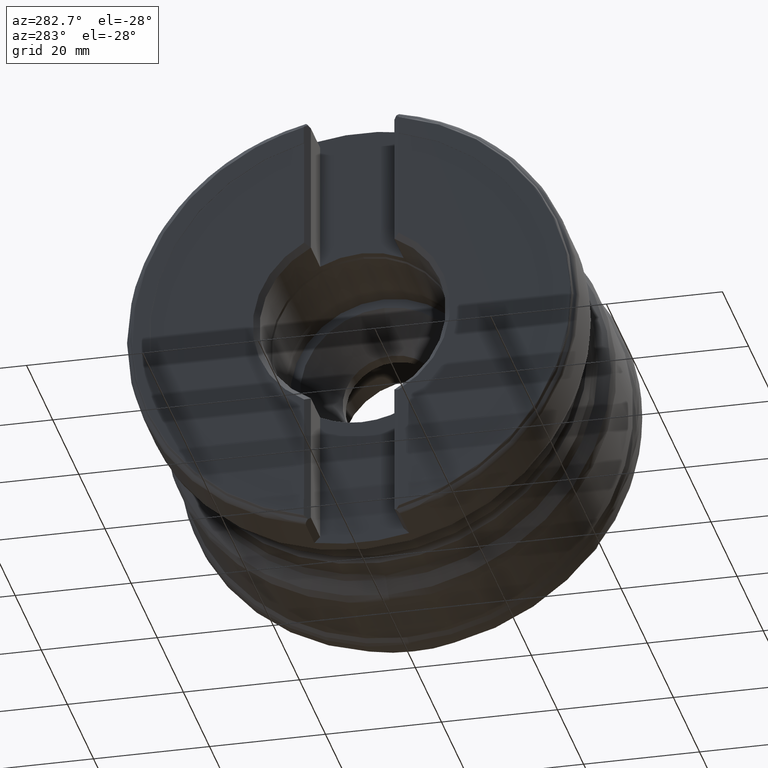
[diagram: clean part render]
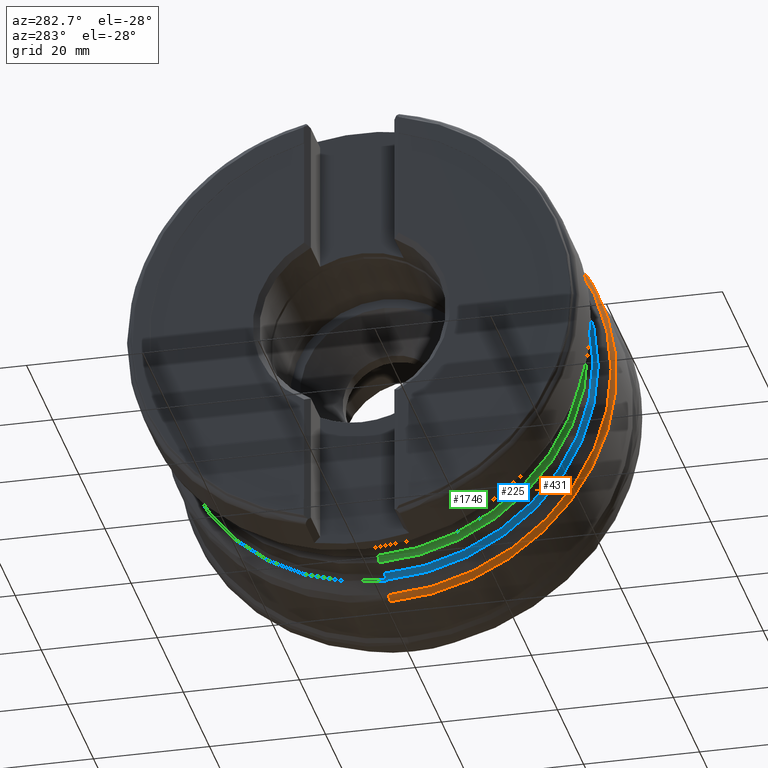
[diagram: same view with three faces highlighted in distinct colors, each labeled with its STEP entity id]
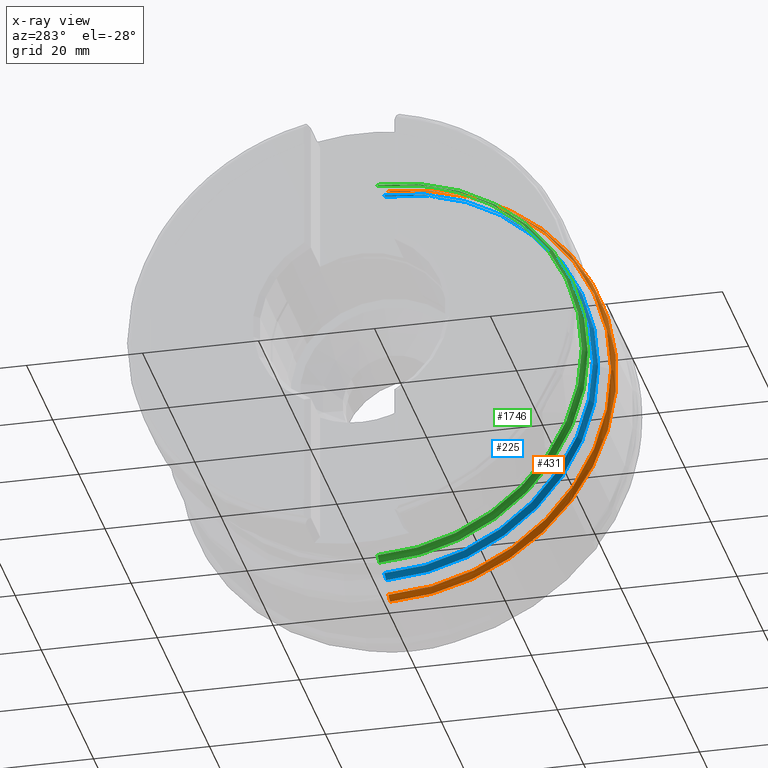
[diagram: x-ray of the same camera — body ghosted, the three highlighted faces saturated]
A machine part, auxiliary view with three faces highlighted in distinct colors.
The next image is the same camera in x-ray (body ghosted, the three faces saturated) — at least one of them is partly hidden behind the body in this view.
Their STEP definitions:

[orange] entity #431 — the highlighted face is a freeform B-spline surface patch.
#61 = CIRCLE ( 'NONE', #583, 39.00000000037699300 ) ;
#115 = ORIENTED_EDGE ( 'NONE', *, *, #116, .T. ) ;
#116 = EDGE_CURVE ( 'NONE', #322, #1352, #61, .T. ) ;
#271 = CARTESIAN_POINT ( 'NONE',  ( -18.98033316699999800, -77.98001666100002200, -38.99000833100000600 ) ) ;
#281 = VERTEX_POINT ( 'NONE', #1331 ) ;
#308 = ORIENTED_EDGE ( 'NONE', *, *, #1529, .F. ) ;
#322 = VERTEX_POINT ( 'NONE', #1762 ) ;
#337 = CARTESIAN_POINT ( 'NONE',  ( -20.59421356200008500, 0.0000000000000000000, 0.0000000000000000000 ) ) ;
#346 = DIRECTION ( 'NONE',  ( 1.000000000000000000, 0.0000000000000000000, 0.0000000000000000000 ) ) ;
#427 = DIRECTION ( 'NONE',  ( 2.167602018260648100E-015, 0.0000000000000000000, -1.000000000000000000 ) ) ;
#431 = ADVANCED_FACE ( 'NONE', ( #2751 ), #2406, .T. ) ;
#583 = AXIS2_PLACEMENT_3D ( 'NONE', #1264, #1311, #1271 ) ;
#934 = CIRCLE ( 'NONE', #1683, 38.41421356199999300 ) ;
#1010 = VERTEX_POINT ( 'NONE', #1489 ) ;
#1264 = CARTESIAN_POINT ( 'NONE',  ( -19.18000000058822600, 0.0000000000000000000, 0.0000000000000000000 ) ) ;
#1271 = DIRECTION ( 'NONE',  ( 0.0000000000000000000, 0.0000000000000000000, 1.000000000000000000 ) ) ;
#1311 = DIRECTION ( 'NONE',  ( -1.000000000000000000, -0.0000000000000000000, -0.0000000000000000000 ) ) ;
#1331 = CARTESIAN_POINT ( 'NONE',  ( -20.59421356194069500, -3.939443452643156000E-009, 38.41421356231234100 ) ) ;
#1352 = VERTEX_POINT ( 'NONE', #2365 ) ;
#1363 = EDGE_CURVE ( 'NONE', #281, #1010, #934, .T. ) ;
#1392 =( BOUNDED_CURVE ( )  B_SPLINE_CURVE ( 3, ( #2516, #2199, #2548, #2648 ),
 .UNSPECIFIED., .F., .F. ) 
 B_SPLINE_CURVE_WITH_KNOTS ( ( 4, 4 ),
 ( 0.1044804449710553100, 0.8955195551736375700 ),
 .UNSPECIFIED. ) 
 CURVE ( )  GEOMETRIC_REPRESENTATION_ITEM ( )  RATIONAL_B_SPLINE_CURVE ( ( 0.9777428142694495300, 0.9281253209122414200, 0.9281253209213175000, 0.9777428142966770900 ) ) 
 REPRESENTATION_ITEM ( '' )  );
#1487 =( BOUNDED_CURVE ( )  B_SPLINE_CURVE ( 3, ( #2779, #2756, #2817, #2727 ),
 .UNSPECIFIED., .F., .F. ) 
 B_SPLINE_CURVE_WITH_KNOTS ( ( 4, 4 ),
 ( 0.1044804447801905700, 0.8955195550597621100 ),
 .UNSPECIFIED. ) 
 CURVE ( )  GEOMETRIC_REPRESENTATION_ITEM ( )  RATIONAL_B_SPLINE_CURVE ( ( 0.9777428143053653600, 0.9281253209193843800, 0.9281253209093455200, 0.9777428142752486700 ) ) 
 REPRESENTATION_ITEM ( '' )  );
#1489 = CARTESIAN_POINT ( 'NONE',  ( -20.59421356195059600, -1.724675809484108200E-009, -38.41421356226026500 ) ) ;
#1529 = EDGE_CURVE ( 'NONE', #281, #1352, #1392, .T. ) ;
#1574 = CARTESIAN_POINT ( 'NONE',  ( -18.98033316699999800, -77.98001666100002200, 38.99000833100000600 ) ) ;
#1683 = AXIS2_PLACEMENT_3D ( 'NONE', #337, #346, #427 ) ;
#1762 = CARTESIAN_POINT ( 'NONE',  ( -19.18000000014705700, -3.501951508720588000E-009, -39.00000000009425300 ) ) ;
#1798 = CARTESIAN_POINT ( 'NONE',  ( -18.98033316699999800, 0.0000000000000000000, 38.99000833100000600 ) ) ;
#1960 = EDGE_CURVE ( 'NONE', #322, #1010, #1487, .T. ) ;
#1987 = EDGE_LOOP ( 'NONE', ( #2468, #115, #308, #2342 ) ) ;
#2019 = CARTESIAN_POINT ( 'NONE',  ( -18.98033316699999800, 0.0000000000000000000, -38.99000833100000600 ) ) ;
#2028 = CARTESIAN_POINT ( 'NONE',  ( -19.66190067200000200, 0.0000000000000000000, 39.05839318300000000 ) ) ;
#2199 = CARTESIAN_POINT ( 'NONE',  ( -20.21412796611188200, 0.0000000000000000000, 38.79429915785615900 ) ) ;
#2237 = CARTESIAN_POINT ( 'NONE',  ( -19.66190067199999800, -78.11678636599998500, 39.05839318300000000 ) ) ;
#2249 = CARTESIAN_POINT ( 'NONE',  ( -19.66190067199999800, -78.11678636599998500, -39.05839318300000000 ) ) ;
#2261 = CARTESIAN_POINT ( 'NONE',  ( -19.66190067200000200, 0.0000000000000000000, -39.05839318300000000 ) ) ;
#2342 = ORIENTED_EDGE ( 'NONE', *, *, #1363, .T. ) ;
#2365 = CARTESIAN_POINT ( 'NONE',  ( -19.18000000022058400, -9.998792140122394600E-009, 39.00000000014137000 ) ) ;
#2406 =( BOUNDED_SURFACE ( )  B_SPLINE_SURFACE ( 3, 3, ( 
 ( #1798, #1574, #271, #2019 ),
 ( #2028, #2237, #2249, #2261 ),
 ( #2470, #2482, #2492, #2697 ),
 ( #2708, #2723, #2467, #2706 ) ),
 .UNSPECIFIED., .F., .F., .T. ) 
 B_SPLINE_SURFACE_WITH_KNOTS ( ( 4, 4 ),
 ( 4, 4 ),
 ( 0.0000000000000000000, 1.000000000000000000 ),
 ( 0.0000000000000000000, 1.000000000000000000 ),
 .UNSPECIFIED. ) 
 GEOMETRIC_REPRESENTATION_ITEM ( )  RATIONAL_B_SPLINE_SURFACE ( (
 ( 1.000000000000000000, 0.3333333333333330400, 0.3333333333333330400, 1.000000000000000000),
 ( 0.9207062590111340100, 0.3069020863370451300, 0.3069020863370451300, 0.9207062590111340100),
 ( 0.9207062590111340100, 0.3069020863370451300, 0.3069020863370451300, 0.9207062590111340100),
 ( 1.000000000000000000, 0.3333333333333330400, 0.3333333333333330400, 1.000000000000000000) ) ) 
 REPRESENTATION_ITEM ( '' )  SURFACE ( )  );
#2467 = CARTESIAN_POINT ( 'NONE',  ( -20.72833415700000300, -76.53192522700001600, -38.26596261300000600 ) ) ;
#2468 = ORIENTED_EDGE ( 'NONE', *, *, #1960, .F. ) ;
#2470 = CARTESIAN_POINT ( 'NONE',  ( -20.29474854399999700, 0.0000000000000000000, 38.79625901100000400 ) ) ;
#2482 = CARTESIAN_POINT ( 'NONE',  ( -20.29474854400000100, -77.59251802300001100, 38.79625901100000400 ) ) ;
#2492 = CARTESIAN_POINT ( 'NONE',  ( -20.29474854400000100, -77.59251802300001100, -38.79625901100000400 ) ) ;
#2516 = CARTESIAN_POINT ( 'NONE',  ( -20.59421356194069500, -3.939443452643156000E-009, 38.41421356231234100 ) ) ;
#2548 = CARTESIAN_POINT ( 'NONE',  ( -19.71752220365393900, 0.0000000000000000000, 39.00000000012921900 ) ) ;
#2648 = CARTESIAN_POINT ( 'NONE',  ( -19.18000000022058400, -9.998792140122394600E-009, 39.00000000014137000 ) ) ;
#2697 = CARTESIAN_POINT ( 'NONE',  ( -20.29474854399999700, 0.0000000000000000000, -38.79625901100000400 ) ) ;
#2706 = CARTESIAN_POINT ( 'NONE',  ( -20.72833415700000300, 0.0000000000000000000, -38.26596261300000600 ) ) ;
#2708 = CARTESIAN_POINT ( 'NONE',  ( -20.72833415700000300, 0.0000000000000000000, 38.26596261300000600 ) ) ;
#2723 = CARTESIAN_POINT ( 'NONE',  ( -20.72833415700000300, -76.53192522700001600, 38.26596261300000600 ) ) ;
#2727 = CARTESIAN_POINT ( 'NONE',  ( -20.59421356195059600, -1.724675809484108200E-009, -38.41421356226026500 ) ) ;
#2751 = FACE_OUTER_BOUND ( 'NONE', #1987, .T. ) ;
#2756 = CARTESIAN_POINT ( 'NONE',  ( -19.71752220361802800, 0.0000000000000000000, -39.00000000015323600 ) ) ;
#2779 = CARTESIAN_POINT ( 'NONE',  ( -19.18000000014705700, -3.501951508720588000E-009, -39.00000000009425300 ) ) ;
#2817 = CARTESIAN_POINT ( 'NONE',  ( -20.21412796612720100, 0.0000000000000000000, -38.79429915786349200 ) ) ;

[blue] entity #225 — the highlighted face is a freeform B-spline surface patch.
#225 = ADVANCED_FACE ( 'NONE', ( #773 ), #2034, .F. ) ;
#400 = VERTEX_POINT ( 'NONE', #2742 ) ;
#534 = VERTEX_POINT ( 'NONE', #1769 ) ;
#577 = ORIENTED_EDGE ( 'NONE', *, *, #2735, .T. ) ;
#769 = AXIS2_PLACEMENT_3D ( 'NONE', #1378, #1370, #1368 ) ;
#773 = FACE_OUTER_BOUND ( 'NONE', #2036, .T. ) ;
#939 = CARTESIAN_POINT ( 'NONE',  ( -22.42264068730551300, -3.285170513186756100E-009, -36.58578643784384400 ) ) ;
#1016 = CIRCLE ( 'NONE', #1754, 36.00000000000000700 ) ;
#1140 = ORIENTED_EDGE ( 'NONE', *, *, #2709, .F. ) ;
#1302 = CARTESIAN_POINT ( 'NONE',  ( -23.83685424911059400, -3.691861713275961200E-009, 35.99999999971724700 ) ) ;
#1310 = CARTESIAN_POINT ( 'NONE',  ( -23.29933204497526200, 0.0000000000000000000, 35.99999999997948000 ) ) ;
#1326 = CIRCLE ( 'NONE', #769, 36.58578643758352200 ) ;
#1341 = CARTESIAN_POINT ( 'NONE',  ( -23.29933204500798600, 0.0000000000000000000, -35.99999999998019000 ) ) ;
#1348 = EDGE_CURVE ( 'NONE', #1948, #534, #1016, .T. ) ;
#1351 = CARTESIAN_POINT ( 'NONE',  ( -23.83685424909216300, -1.616285311717194900E-009, -35.99999999976437000 ) ) ;
#1362 = CARTESIAN_POINT ( 'NONE',  ( -22.42264068720365700, -1.125580535004527200E-008, 36.58578643789591200 ) ) ;
#1368 = DIRECTION ( 'NONE',  ( 9.483045985283376600E-017, 1.000000000000000000, 0.0000000000000000000 ) ) ;
#1370 = DIRECTION ( 'NONE',  ( 1.000000000000000000, -9.483045985409091500E-017, 0.0000000000000000000 ) ) ;
#1378 = CARTESIAN_POINT ( 'NONE',  ( -22.42264068781477300, 0.0000000000000000000, 0.0000000000000000000 ) ) ;
#1431 = CARTESIAN_POINT ( 'NONE',  ( -22.80272628257594600, 0.0000000000000000000, -36.20570084237730400 ) ) ;
#1441 = VERTEX_POINT ( 'NONE', #939 ) ;
#1448 = CARTESIAN_POINT ( 'NONE',  ( -22.42264068730551300, -3.285170513186756100E-009, -36.58578643784385100 ) ) ;
#1549 = CARTESIAN_POINT ( 'NONE',  ( -22.80272628251627500, 0.0000000000000000000, 36.20570084240160500 ) ) ;
#1668 = ORIENTED_EDGE ( 'NONE', *, *, #1348, .T. ) ;
#1676 =( BOUNDED_CURVE ( )  B_SPLINE_CURVE ( 3, ( #1351, #1341, #1431, #1448 ),
 .UNSPECIFIED., .F., .F. ) 
 B_SPLINE_CURVE_WITH_KNOTS ( ( 4, 4 ),
 ( 0.1044804450367490400, 0.8955195552730478300 ),
 .UNSPECIFIED. ) 
 CURVE ( )  GEOMETRIC_REPRESENTATION_ITEM ( )  RATIONAL_B_SPLINE_CURVE ( ( 0.9777428142570878700, 0.9281253209060061900, 0.9281253209254379800, 0.9777428143153834600 ) ) 
 REPRESENTATION_ITEM ( '' )  );
#1754 = AXIS2_PLACEMENT_3D ( 'NONE', #2736, #2750, #2763 ) ;
#1757 = CARTESIAN_POINT ( 'NONE',  ( -24.03652108300000000, -72.01998333900000700, 36.00999166899999400 ) ) ;
#1769 = CARTESIAN_POINT ( 'NONE',  ( -23.83685424909216300, -1.616285311717194900E-009, -35.99999999976437000 ) ) ;
#1779 = EDGE_CURVE ( 'NONE', #534, #1441, #1676, .T. ) ;
#1948 = VERTEX_POINT ( 'NONE', #2497 ) ;
#1990 = CARTESIAN_POINT ( 'NONE',  ( -22.28852009299999500, 0.0000000000000000000, 36.73403738700000100 ) ) ;
#2006 = CARTESIAN_POINT ( 'NONE',  ( -22.72210570500000100, 0.0000000000000000000, -36.20374098900000300 ) ) ;
#2008 = CARTESIAN_POINT ( 'NONE',  ( -22.72210570500000400, -72.40748197700000300, -36.20374098900001100 ) ) ;
#2021 = CARTESIAN_POINT ( 'NONE',  ( -22.72210570500000400, -72.40748197700000300, 36.20374098900001100 ) ) ;
#2034 =( BOUNDED_SURFACE ( )  B_SPLINE_SURFACE ( 3, 3, ( 
 ( #2393, #1757, #2380, #2306 ),
 ( #2223, #2080, #2077, #2060 ),
 ( #2050, #2021, #2008, #2006 ),
 ( #1990, #2041, #2048, #2167 ) ),
 .UNSPECIFIED., .F., .F., .F. ) 
 B_SPLINE_SURFACE_WITH_KNOTS ( ( 4, 4 ),
 ( 4, 4 ),
 ( 0.0000000000000000000, 1.000000000000000000 ),
 ( 0.0000000000000000000, 1.000000000000000000 ),
 .UNSPECIFIED. ) 
 GEOMETRIC_REPRESENTATION_ITEM ( )  RATIONAL_B_SPLINE_SURFACE ( (
 ( 1.000000000000000000, 0.3333333333333330400, 0.3333333333333330400, 1.000000000000000000),
 ( 0.9207062590111340100, 0.3069020863370451300, 0.3069020863370451300, 0.9207062590111340100),
 ( 0.9207062590111340100, 0.3069020863370451300, 0.3069020863370451300, 0.9207062590111340100),
 ( 1.000000000000000000, 0.3333333333333330400, 0.3333333333333330400, 1.000000000000000000) ) ) 
 REPRESENTATION_ITEM ( '' )  SURFACE ( )  );
#2036 = EDGE_LOOP ( 'NONE', ( #577, #1668, #2170, #1140 ) ) ;
#2041 = CARTESIAN_POINT ( 'NONE',  ( -22.28852009299999500, -73.46807477300001200, 36.73403738700000100 ) ) ;
#2048 = CARTESIAN_POINT ( 'NONE',  ( -22.28852009299999500, -73.46807477300001200, -36.73403738700000100 ) ) ;
#2050 = CARTESIAN_POINT ( 'NONE',  ( -22.72210570500000100, 0.0000000000000000000, 36.20374098900000300 ) ) ;
#2060 = CARTESIAN_POINT ( 'NONE',  ( -23.35495357700000300, 0.0000000000000000000, -35.94160681699999300 ) ) ;
#2077 = CARTESIAN_POINT ( 'NONE',  ( -23.35495357700000300, -71.88321363400002900, -35.94160681699999300 ) ) ;
#2080 = CARTESIAN_POINT ( 'NONE',  ( -23.35495357700000300, -71.88321363400002900, 35.94160681699999300 ) ) ;
#2167 = CARTESIAN_POINT ( 'NONE',  ( -22.28852009299999500, 0.0000000000000000000, -36.73403738700000100 ) ) ;
#2170 = ORIENTED_EDGE ( 'NONE', *, *, #1779, .T. ) ;
#2223 = CARTESIAN_POINT ( 'NONE',  ( -23.35495357700000300, 0.0000000000000000000, 35.94160681699999300 ) ) ;
#2306 = CARTESIAN_POINT ( 'NONE',  ( -24.03652108300000000, 0.0000000000000000000, -36.00999166899999400 ) ) ;
#2380 = CARTESIAN_POINT ( 'NONE',  ( -24.03652108300000000, -72.01998333900000700, -36.00999166899999400 ) ) ;
#2393 = CARTESIAN_POINT ( 'NONE',  ( -24.03652108300000000, 0.0000000000000000000, 36.00999166899999400 ) ) ;
#2497 = CARTESIAN_POINT ( 'NONE',  ( -23.83685424911059400, -3.691861713275961200E-009, 35.99999999971724700 ) ) ;
#2709 = EDGE_CURVE ( 'NONE', #400, #1441, #1326, .T. ) ;
#2735 = EDGE_CURVE ( 'NONE', #400, #1948, #2805, .T. ) ;
#2736 = CARTESIAN_POINT ( 'NONE',  ( -23.83685424900000500, 0.0000000000000000000, 0.0000000000000000000 ) ) ;
#2742 = CARTESIAN_POINT ( 'NONE',  ( -22.42264068720365700, -1.125580535004527200E-008, 36.58578643789591200 ) ) ;
#2750 = DIRECTION ( 'NONE',  ( 1.000000000000000000, 0.0000000000000000000, 0.0000000000000000000 ) ) ;
#2763 = DIRECTION ( 'NONE',  ( 0.0000000000000000000, 0.0000000000000000000, -1.000000000000000000 ) ) ;
#2805 =( BOUNDED_CURVE ( )  B_SPLINE_CURVE ( 3, ( #1362, #1549, #1310, #1302 ),
 .UNSPECIFIED., .F., .F. ) 
 B_SPLINE_CURVE_WITH_KNOTS ( ( 4, 4 ),
 ( 0.1044804446788845000, 0.8955195549646040000 ),
 .UNSPECIFIED. ) 
 CURVE ( )  GEOMETRIC_REPRESENTATION_ITEM ( )  RATIONAL_B_SPLINE_CURVE ( ( 0.9777428143244283300, 0.9281253209253532700, 0.9281253209029912700, 0.9777428142573425500 ) ) 
 REPRESENTATION_ITEM ( '' )  );

[green] entity #1746 — the highlighted face is a freeform B-spline surface patch.
#91 = CIRCLE ( 'NONE', #2058, 35.24999999990509300 ) ;
#121 = ORIENTED_EDGE ( 'NONE', *, *, #2677, .T. ) ;
#123 = CARTESIAN_POINT ( 'NONE',  ( -27.70999999983669700, -1.616285311717194900E-009, -35.99999999983467800 ) ) ;
#136 = CARTESIAN_POINT ( 'NONE',  ( -29.00903810599186300, 0.0000000000000000000, 0.0000000000000000000 ) ) ;
#143 = CARTESIAN_POINT ( 'NONE',  ( -28.45999999991999400, 0.0000000000000000000, -35.24999999992702700 ) ) ;
#151 = CARTESIAN_POINT ( 'NONE',  ( -29.00903810589536400, 0.0000000000000000000, -35.24999999990508600 ) ) ;
#251 = CARTESIAN_POINT ( 'NONE',  ( -29.15878823099999600, -70.51498750400000400, 35.25749375199999500 ) ) ;
#252 = VERTEX_POINT ( 'NONE', #1606 ) ;
#263 = DIRECTION ( 'NONE',  ( -1.000000000000000000, -4.921201350303250900E-017, -0.0000000000000000000 ) ) ;
#386 =( BOUNDED_SURFACE ( )  B_SPLINE_SURFACE ( 3, 3, ( 
 ( #566, #251, #573, #581 ),
 ( #591, #595, #602, #604 ),
 ( #610, #620, #627, #637 ),
 ( #642, #651, #659, #670 ) ),
 .UNSPECIFIED., .F., .F., .F. ) 
 B_SPLINE_SURFACE_WITH_KNOTS ( ( 4, 4 ),
 ( 4, 4 ),
 ( 0.0000000000000000000, 1.000000000000000000 ),
 ( 0.0000000000000000000, 1.000000000000000000 ),
 .UNSPECIFIED. ) 
 GEOMETRIC_REPRESENTATION_ITEM ( )  RATIONAL_B_SPLINE_SURFACE ( (
 ( 1.000000000000000000, 0.3333333333333330400, 0.3333333333333330400, 1.000000000000000000),
 ( 0.8745214504524571100, 0.2915071501508190200, 0.2915071501508190200, 0.8745214504524571100),
 ( 0.8745214504524571100, 0.2915071501508190200, 0.2915071501508190200, 0.8745214504524571100),
 ( 1.000000000000000000, 0.3333333333333330400, 0.3333333333333330400, 1.000000000000000000) ) ) 
 REPRESENTATION_ITEM ( '' )  SURFACE ( )  );
#424 = FACE_OUTER_BOUND ( 'NONE', #1977, .T. ) ;
#535 = CARTESIAN_POINT ( 'NONE',  ( -27.98451905239032200, 0.0000000000000000000, -35.52451905318521600 ) ) ;
#566 = CARTESIAN_POINT ( 'NONE',  ( -29.15878823099999900, 0.0000000000000000000, 35.25749375199999500 ) ) ;
#573 = CARTESIAN_POINT ( 'NONE',  ( -29.15878823099999600, -70.51498750400000400, -35.25749375199999500 ) ) ;
#581 = CARTESIAN_POINT ( 'NONE',  ( -29.15878823099999900, 0.0000000000000000000, -35.25749375199999500 ) ) ;
#591 = CARTESIAN_POINT ( 'NONE',  ( -28.49437572500000800, 0.0000000000000000000, 35.19083014100000600 ) ) ;
#595 = CARTESIAN_POINT ( 'NONE',  ( -28.49437572500000500, -70.38166028200001300, 35.19083014100000600 ) ) ;
#602 = CARTESIAN_POINT ( 'NONE',  ( -28.49437572500000500, -70.38166028200001300, -35.19083014100000600 ) ) ;
#604 = CARTESIAN_POINT ( 'NONE',  ( -28.49437572500000800, 0.0000000000000000000, -35.19083014100000600 ) ) ;
#610 = CARTESIAN_POINT ( 'NONE',  ( -27.91608858900000100, 0.0000000000000000000, 35.52470437499999900 ) ) ;
#620 = CARTESIAN_POINT ( 'NONE',  ( -27.91608858900000500, -71.04940874900000800, 35.52470437500000600 ) ) ;
#627 = CARTESIAN_POINT ( 'NONE',  ( -27.91608858900000500, -71.04940874900000800, -35.52470437500000600 ) ) ;
#637 = CARTESIAN_POINT ( 'NONE',  ( -27.91608858900000100, 0.0000000000000000000, -35.52470437499999900 ) ) ;
#639 = CARTESIAN_POINT ( 'NONE',  ( -29.00903810587123700, 0.0000000000000000000, 35.24999999990508600 ) ) ;
#642 = CARTESIAN_POINT ( 'NONE',  ( -27.64161471700000300, 0.0000000000000000000, 36.13343428800000400 ) ) ;
#651 = CARTESIAN_POINT ( 'NONE',  ( -27.64161471700000300, -72.26686857699999700, 36.13343428800000400 ) ) ;
#659 = CARTESIAN_POINT ( 'NONE',  ( -27.64161471700000300, -72.26686857699999700, -36.13343428800000400 ) ) ;
#670 = CARTESIAN_POINT ( 'NONE',  ( -27.64161471700000300, 0.0000000000000000000, -36.13343428800000400 ) ) ;
#752 = EDGE_CURVE ( 'NONE', #974, #1416, #91, .T. ) ;
#928 =( BOUNDED_CURVE ( )  B_SPLINE_CURVE ( 3, ( #2305, #1967, #1911, #1900 ),
 .UNSPECIFIED., .F., .F. ) 
 B_SPLINE_CURVE_WITH_KNOTS ( ( 4, 4 ),
 ( 0.08433345306684897300, 0.9156665470204572400 ),
 .UNSPECIFIED. ) 
 CURVE ( )  GEOMETRIC_REPRESENTATION_ITEM ( )  RATIONAL_B_SPLINE_CURVE ( ( 0.9709311416539810900, 0.8842110698920231400, 0.8842110699011301900, 0.9709311416813027900 ) ) 
 REPRESENTATION_ITEM ( '' )  );
#974 = VERTEX_POINT ( 'NONE', #1706 ) ;
#1254 = CIRCLE ( 'NONE', #1917, 36.00000000000000700 ) ;
#1293 = EDGE_CURVE ( 'NONE', #1465, #974, #2543, .T. ) ;
#1340 = DIRECTION ( 'NONE',  ( 9.842402700604129100E-017, -1.000000000000000000, 0.0000000000000000000 ) ) ;
#1416 = VERTEX_POINT ( 'NONE', #639 ) ;
#1465 = VERTEX_POINT ( 'NONE', #1555 ) ;
#1555 = CARTESIAN_POINT ( 'NONE',  ( -27.70999999983669700, -1.616285311717194900E-009, -35.99999999983467800 ) ) ;
#1558 = DIRECTION ( 'NONE',  ( 0.0000000000000000000, 0.0000000000000000000, -1.000000000000000000 ) ) ;
#1562 = DIRECTION ( 'NONE',  ( -1.000000000000000000, -0.0000000000000000000, -0.0000000000000000000 ) ) ;
#1571 = CARTESIAN_POINT ( 'NONE',  ( -27.71000000000000100, 0.0000000000000000000, 0.0000000000000000000 ) ) ;
#1606 = CARTESIAN_POINT ( 'NONE',  ( -27.70999999983669700, -5.537792569913942000E-009, 35.99999999983467800 ) ) ;
#1643 = ORIENTED_EDGE ( 'NONE', *, *, #1293, .F. ) ;
#1706 = CARTESIAN_POINT ( 'NONE',  ( -29.00903810589536400, 0.0000000000000000000, -35.24999999990508600 ) ) ;
#1746 = ADVANCED_FACE ( 'NONE', ( #424 ), #386, .F. ) ;
#1900 = CARTESIAN_POINT ( 'NONE',  ( -27.70999999983669700, -5.537792569913942000E-009, 35.99999999983467800 ) ) ;
#1911 = CARTESIAN_POINT ( 'NONE',  ( -27.98451905238547600, 0.0000000000000000000, 35.52451905319362200 ) ) ;
#1917 = AXIS2_PLACEMENT_3D ( 'NONE', #1571, #1562, #1558 ) ;
#1967 = CARTESIAN_POINT ( 'NONE',  ( -28.45999999990468900, 0.0000000000000000000, 35.24999999993584500 ) ) ;
#1977 = EDGE_LOOP ( 'NONE', ( #2081, #1643, #121, #2253 ) ) ;
#2058 = AXIS2_PLACEMENT_3D ( 'NONE', #136, #263, #1340 ) ;
#2081 = ORIENTED_EDGE ( 'NONE', *, *, #752, .F. ) ;
#2253 = ORIENTED_EDGE ( 'NONE', *, *, #2640, .F. ) ;
#2305 = CARTESIAN_POINT ( 'NONE',  ( -29.00903810587123700, 0.0000000000000000000, 35.24999999990508600 ) ) ;
#2543 =( BOUNDED_CURVE ( )  B_SPLINE_CURVE ( 3, ( #123, #535, #143, #151 ),
 .UNSPECIFIED., .F., .F. ) 
 B_SPLINE_CURVE_WITH_KNOTS ( ( 4, 4 ),
 ( 0.08433345297954585000, 0.9156665469465225000 ),
 .UNSPECIFIED. ) 
 CURVE ( )  GEOMETRIC_REPRESENTATION_ITEM ( )  RATIONAL_B_SPLINE_CURVE ( ( 0.9709311416813017900, 0.8842110698997351900, 0.8842110698920231400, 0.9709311416581654100 ) ) 
 REPRESENTATION_ITEM ( '' )  );
#2640 = EDGE_CURVE ( 'NONE', #1416, #252, #928, .T. ) ;
#2677 = EDGE_CURVE ( 'NONE', #1465, #252, #1254, .T. ) ;